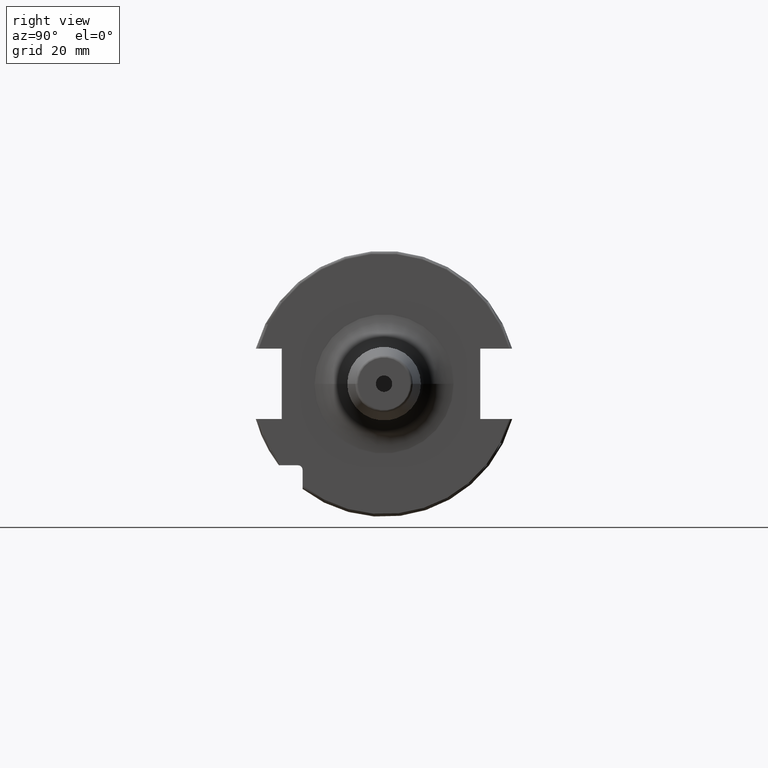
[diagram: clean part render]
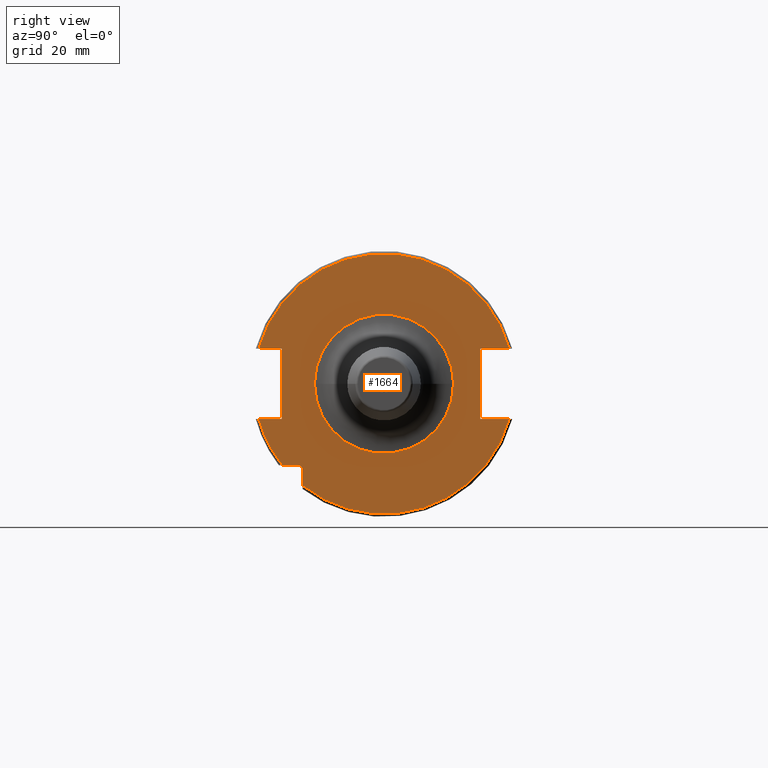
[diagram: same view with one face highlighted and labeled with its STEP entity id]
A machine part, right view. The second image highlights one B-rep face of the part: STEP entity #1664.
In plain terms, the highlighted planar face has unit normal (1, 0, 0).
Its self-contained STEP definition (entity closure, byte-faithful):
#126=DIRECTION('',(0.E0,0.E0,1.E0));
#127=VECTOR('',#126,5.653810627237E0);
#128=CARTESIAN_POINT('',(1.905E1,-2.985E1,-3.725381062724E1));
#129=LINE('',#128,#127);
#130=DIRECTION('',(0.E0,-1.E0,0.E0));
#131=VECTOR('',#130,5.653810627237E0);
#132=CARTESIAN_POINT('',(1.905E1,-3.16E1,-2.985E1));
#133=LINE('',#132,#131);
#134=DIRECTION('',(0.E0,1.E0,0.E0));
#135=VECTOR('',#134,8.461493733886E0);
#136=CARTESIAN_POINT('',(1.905E1,-4.596149373389E1,-1.29E1));
#137=LINE('',#136,#135);
#138=DIRECTION('',(0.E0,0.E0,1.E0));
#139=VECTOR('',#138,2.58E1);
#140=CARTESIAN_POINT('',(1.905E1,-3.75E1,-1.29E1));
#141=LINE('',#140,#139);
#142=DIRECTION('',(0.E0,1.E0,0.E0));
#143=VECTOR('',#142,8.461493733886E0);
#144=CARTESIAN_POINT('',(1.905E1,-4.596149373389E1,1.29E1));
#145=LINE('',#144,#143);
#146=DIRECTION('',(0.E0,-1.E0,0.E0));
#147=VECTOR('',#146,1.066149373389E1);
#148=CARTESIAN_POINT('',(1.905E1,4.596149373389E1,1.29E1));
#149=LINE('',#148,#147);
#150=DIRECTION('',(0.E0,0.E0,-1.E0));
#151=VECTOR('',#150,2.58E1);
#152=CARTESIAN_POINT('',(1.905E1,3.53E1,1.29E1));
#153=LINE('',#152,#151);
#154=DIRECTION('',(0.E0,-1.E0,0.E0));
#155=VECTOR('',#154,1.066149373389E1);
#156=CARTESIAN_POINT('',(1.905E1,4.596149373389E1,-1.29E1));
#157=LINE('',#156,#155);
#158=CARTESIAN_POINT('',(1.905E1,0.E0,0.E0));
#159=DIRECTION('',(1.E0,0.E0,0.E0));
#160=DIRECTION('',(0.E0,-1.E0,0.E0));
#161=AXIS2_PLACEMENT_3D('',#158,#159,#160);
#163=CARTESIAN_POINT('',(1.905E1,0.E0,0.E0));
#164=DIRECTION('',(1.E0,0.E0,0.E0));
#165=DIRECTION('',(0.E0,1.E0,0.E0));
#166=AXIS2_PLACEMENT_3D('',#163,#164,#165);
#172=CARTESIAN_POINT('',(1.905E1,-3.16E1,-3.16E1));
#173=DIRECTION('',(-1.E0,0.E0,0.E0));
#174=DIRECTION('',(0.E0,0.E0,1.E0));
#175=AXIS2_PLACEMENT_3D('',#172,#173,#174);
#545=CARTESIAN_POINT('',(1.905E1,0.E0,0.E0));
#546=DIRECTION('',(1.E0,0.E0,0.E0));
#547=DIRECTION('',(0.E0,9.627964123359E-1,2.702278083268E-1));
#548=AXIS2_PLACEMENT_3D('',#545,#546,#547);
#844=CARTESIAN_POINT('',(1.905E1,0.E0,0.E0));
#845=DIRECTION('',(-1.E0,0.E0,0.E0));
#846=DIRECTION('',(0.E0,9.627964123359E-1,-2.702278083268E-1));
#847=AXIS2_PLACEMENT_3D('',#844,#845,#846);
#860=CARTESIAN_POINT('',(1.905E1,0.E0,0.E0));
#861=DIRECTION('',(-1.E0,0.E0,0.E0));
#862=DIRECTION('',(0.E0,-7.803888060170E-1,-6.252945797329E-1));
#863=AXIS2_PLACEMENT_3D('',#860,#861,#862);
#874=CARTESIAN_POINT('',(1.905E1,-3.725381062724E1,-2.985E1));
#1328=CARTESIAN_POINT('',(1.905E1,4.596149373389E1,1.29E1));
#1329=CARTESIAN_POINT('',(1.905E1,3.53E1,1.29E1));
#1330=VERTEX_POINT('',#1328);
#1331=VERTEX_POINT('',#1329);
#1332=CARTESIAN_POINT('',(1.905E1,3.53E1,-1.29E1));
#1333=VERTEX_POINT('',#1332);
#1334=CARTESIAN_POINT('',(1.905E1,4.596149373389E1,-1.29E1));
#1335=VERTEX_POINT('',#1334);
#1336=CARTESIAN_POINT('',(1.905E1,-4.596149373389E1,-1.29E1));
#1337=CARTESIAN_POINT('',(1.905E1,-3.75E1,-1.29E1));
#1338=VERTEX_POINT('',#1336);
#1339=VERTEX_POINT('',#1337);
#1340=CARTESIAN_POINT('',(1.905E1,-3.75E1,1.29E1));
#1341=VERTEX_POINT('',#1340);
#1342=CARTESIAN_POINT('',(1.905E1,-4.596149373389E1,1.29E1));
#1343=VERTEX_POINT('',#1342);
#1397=CARTESIAN_POINT('',(1.905E1,-2.985E1,-3.725381062724E1));
#1398=VERTEX_POINT('',#1397);
#1405=CARTESIAN_POINT('',(1.905E1,-3.16E1,-2.985E1));
#1406=CARTESIAN_POINT('',(1.905E1,-2.985E1,-3.16E1));
#1407=VERTEX_POINT('',#1405);
#1408=VERTEX_POINT('',#1406);
#1430=VERTEX_POINT('',#874);
#1444=CARTESIAN_POINT('',(1.905E1,-2.55E1,-2.889424837800E-14));
#1445=CARTESIAN_POINT('',(1.905E1,2.55E1,1.444712418900E-14));
#1446=VERTEX_POINT('',#1444);
#1447=VERTEX_POINT('',#1445);
#1628=CARTESIAN_POINT('',(1.905E1,0.E0,0.E0));
#1629=DIRECTION('',(1.E0,0.E0,0.E0));
#1630=DIRECTION('',(0.E0,-1.E0,0.E0));
#1631=AXIS2_PLACEMENT_3D('',#1628,#1629,#1630);
#1632=PLANE('',#1631);
#1634=ORIENTED_EDGE('',*,*,#1633,.T.);
#1636=ORIENTED_EDGE('',*,*,#1635,.F.);
#1638=ORIENTED_EDGE('',*,*,#1637,.T.);
#1640=ORIENTED_EDGE('',*,*,#1639,.T.);
#1642=ORIENTED_EDGE('',*,*,#1641,.T.);
#1644=ORIENTED_EDGE('',*,*,#1643,.T.);
#1646=ORIENTED_EDGE('',*,*,#1645,.F.);
#1648=ORIENTED_EDGE('',*,*,#1647,.F.);
#1650=ORIENTED_EDGE('',*,*,#1649,.T.);
#1651=ORIENTED_EDGE('',*,*,#1612,.T.);
#1653=ORIENTED_EDGE('',*,*,#1652,.F.);
#1655=ORIENTED_EDGE('',*,*,#1654,.T.);
#1656=EDGE_LOOP('',(#1634,#1636,#1638,#1640,#1642,#1644,#1646,#1648,#1650,#1651,
#1653,#1655));
#1657=FACE_OUTER_BOUND('',#1656,.F.);
#1659=ORIENTED_EDGE('',*,*,#1658,.T.);
#1661=ORIENTED_EDGE('',*,*,#1660,.T.);
#1662=EDGE_LOOP('',(#1659,#1661));
#1663=FACE_BOUND('',#1662,.F.);
#1664=ADVANCED_FACE('',(#1657,#1663),#1632,.T.);
#162=CIRCLE('',#161,2.55E1);
#167=CIRCLE('',#166,2.55E1);
#176=CIRCLE('',#175,1.75E0);
#549=CIRCLE('',#548,4.77375E1);
#848=CIRCLE('',#847,4.77375E1);
#864=CIRCLE('',#863,4.77375E1);
#1612=EDGE_CURVE('',#1331,#1333,#153,.T.);
#1633=EDGE_CURVE('',#1398,#1408,#129,.T.);
#1635=EDGE_CURVE('',#1407,#1408,#176,.T.);
#1637=EDGE_CURVE('',#1407,#1430,#133,.T.);
#1639=EDGE_CURVE('',#1430,#1338,#864,.T.);
#1641=EDGE_CURVE('',#1338,#1339,#137,.T.);
#1643=EDGE_CURVE('',#1339,#1341,#141,.T.);
#1645=EDGE_CURVE('',#1343,#1341,#145,.T.);
#1647=EDGE_CURVE('',#1330,#1343,#549,.T.);
#1649=EDGE_CURVE('',#1330,#1331,#149,.T.);
#1652=EDGE_CURVE('',#1335,#1333,#157,.T.);
#1654=EDGE_CURVE('',#1335,#1398,#848,.T.);
#1658=EDGE_CURVE('',#1446,#1447,#162,.T.);
#1660=EDGE_CURVE('',#1447,#1446,#167,.T.);